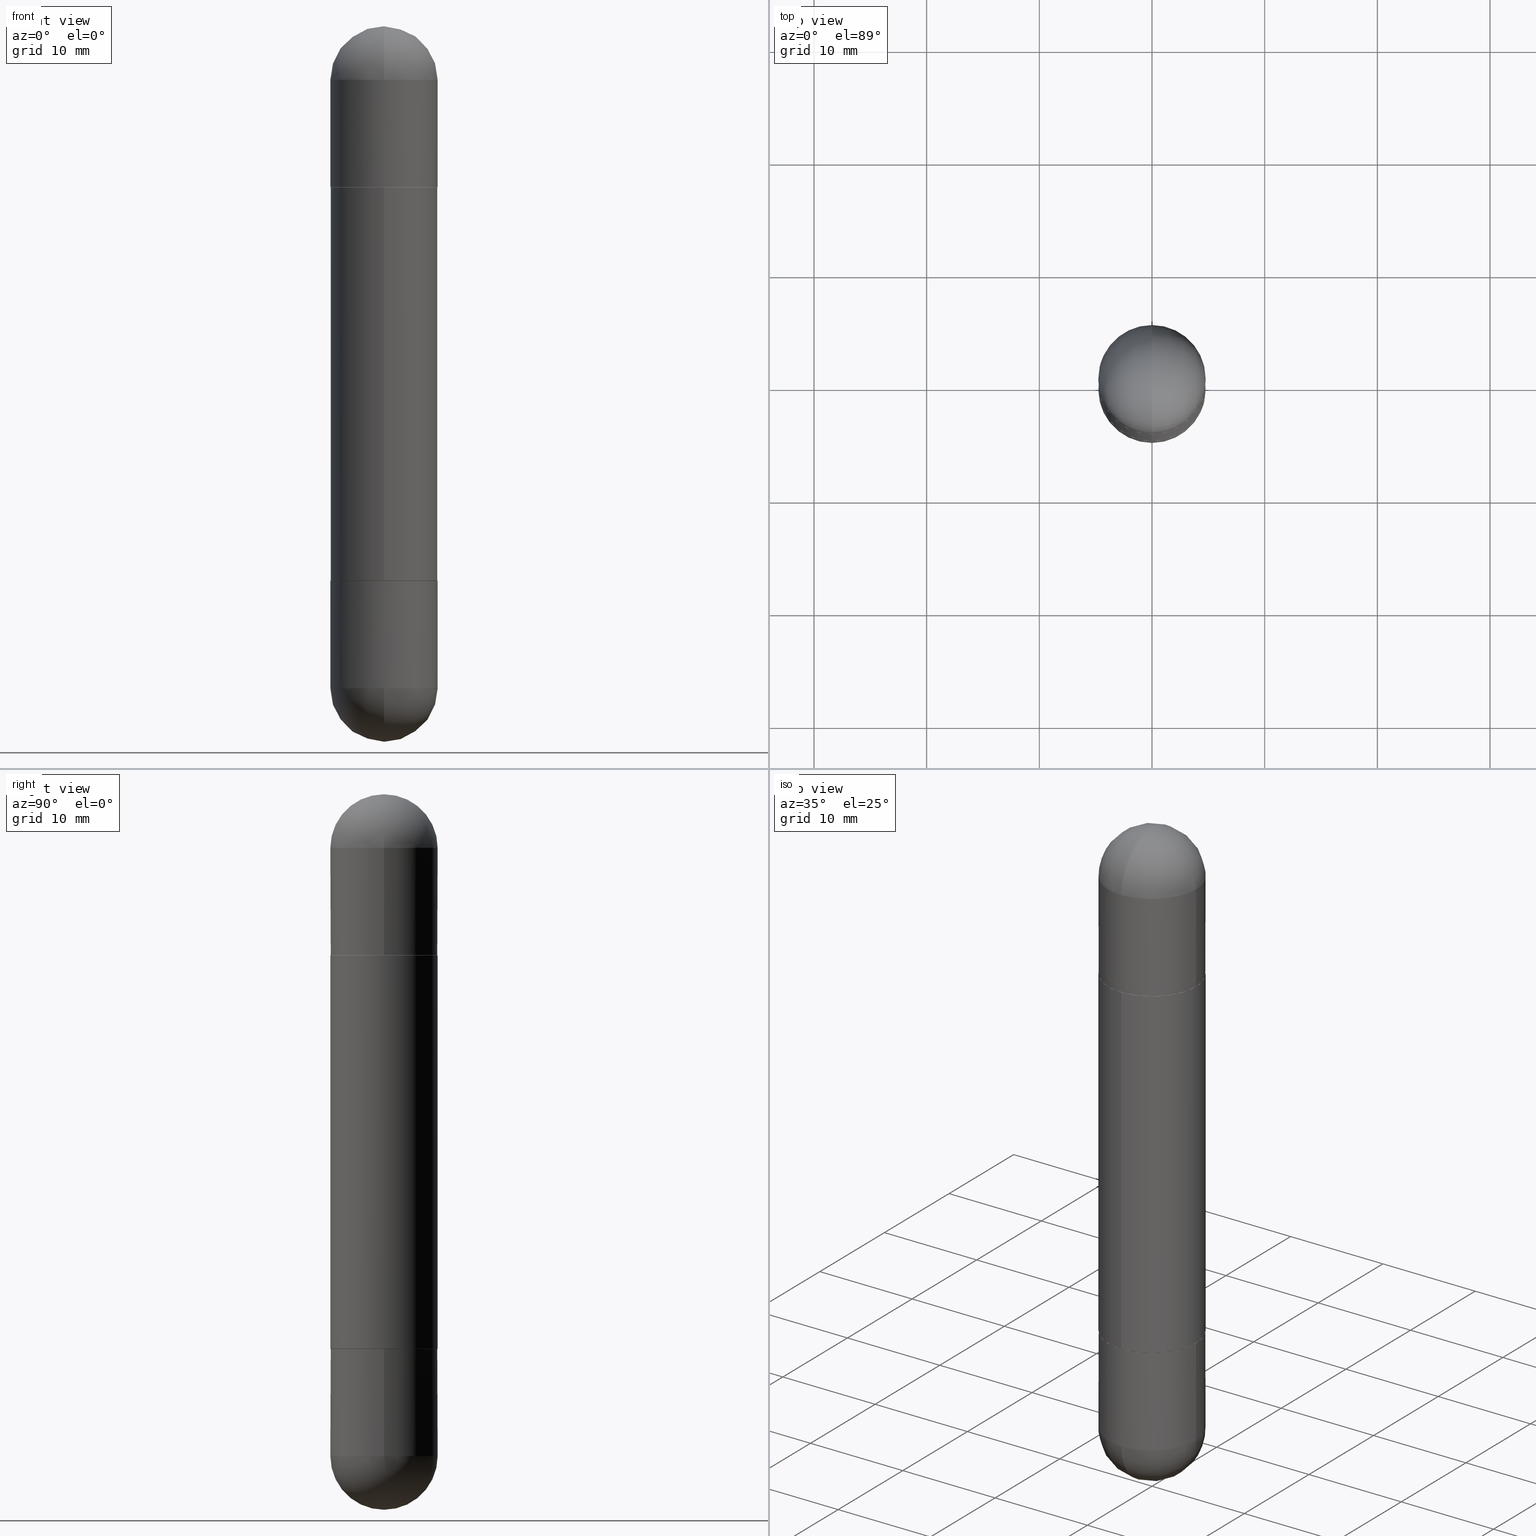
[diagram: canonical four-view strip — front | top / right | iso, engineering-drawing reading convention]
A machine part, canonical four-view strip (front | top / right | iso — engineering-drawing reading convention). The complete STEP part file that produces these views, byte-faithful:
ISO-10303-21;
HEADER;
FILE_DESCRIPTION (( 'STEP AP203' ),
    '1' );
FILE_NAME ('39686.STEP',
    '2024-03-01T12:44:19',
    ( '' ),
    ( '' ),
    'SwSTEP 2.0',
    'SolidWorks 2023',
    '' );
FILE_SCHEMA (( 'CONFIG_CONTROL_DESIGN' ));
ENDSEC;

DATA;
#1 = ORIENTED_EDGE ( 'NONE', *, *, #28, .T. ) ;
#2 = CARTESIAN_POINT ( 'NONE',  ( 5.324026836389243254E-29, -8.548232964214825368E-15, -0.1875000000000006661 ) ) ;
#3 = ORIENTED_EDGE ( 'NONE', *, *, #685, .F. ) ;
#4 = VERTEX_POINT ( 'NONE', #723 ) ;
#5 = CLOSED_SHELL ( 'NONE', ( #402, #405, #659, #617, #726 ) ) ;
#6 = AXIS2_PLACEMENT_3D ( 'NONE', #530, #393, #13 ) ;
#7 = VECTOR ( 'NONE', #232, 39.37007874015748143 ) ;
#8 = EDGE_LOOP ( 'NONE', ( #635, #135 ) ) ;
#9 = CYLINDRICAL_SURFACE ( 'NONE', #293, 0.1875000000000000555 ) ;
#10 = EDGE_LOOP ( 'NONE', ( #75, #186 ) ) ;
#11 = LINE ( 'NONE', #520, #71 ) ;
#12 = EDGE_LOOP ( 'NONE', ( #509, #179, #708, #547 ) ) ;
#13 = DIRECTION ( 'NONE',  ( 1.000000000000000000, -6.982962677686270655E-15, 0.000000000000000000 ) ) ;
#14 = DIRECTION ( 'NONE',  ( -2.444813990974840691E-29, 3.492419071494056237E-15, -1.000000000000000000 ) ) ;
#15 = DIRECTION ( 'NONE',  ( -2.444813990974840691E-29, 3.492419071494056237E-15, -1.000000000000000000 ) ) ;
#16 = SPHERICAL_SURFACE ( 'NONE', #799, 0.1875000000000003331 ) ;
#17 = EDGE_CURVE ( 'NONE', #444, #61, #789, .T. ) ;
#18 = VERTEX_POINT ( 'NONE', #730 ) ;
#19 = ORIENTED_EDGE ( 'NONE', *, *, #516, .T. ) ;
#20 = CIRCLE ( 'NONE', #702, 0.1864999999999999714 ) ;
#21 = AXIS2_PLACEMENT_3D ( 'NONE', #486, #165, #156 ) ;
#22 = CARTESIAN_POINT ( 'NONE',  ( 0.000000000000000000, 0.000000000000000000, -2.500000000000000444 ) ) ;
#23 = LOCAL_TIME ( 7, 44, 19.00000000000000000, #791 ) ;
#24 = ORIENTED_EDGE ( 'NONE', *, *, #608, .T. ) ;
#25 = CALENDAR_DATE ( 2024, 1, 3 ) ;
#26 = DIRECTION ( 'NONE',  ( -6.982962677686265922E-15, -1.000000000000000000, -3.642463991552347014E-15 ) ) ;
#27 = APPROVAL_STATUS ( 'not_yet_approved' ) ;
#28 = EDGE_CURVE ( 'NONE', #714, #111, #670, .T. ) ;
#29 = CARTESIAN_POINT ( 'NONE',  ( 0.000000000000000000, 0.000000000000000000, -2.500000000000000444 ) ) ;
#30 = PERSON_AND_ORGANIZATION ( #660, #515 ) ;
#31 = CLOSED_SHELL ( 'NONE', ( #259, #440, #667, #317, #643, #545, #599, #126 ) ) ;
#32 = FACE_OUTER_BOUND ( 'NONE', #808, .T. ) ;
#33 = ORIENTED_EDGE ( 'NONE', *, *, #395, .T. ) ;
#34 = DIRECTION ( 'NONE',  ( -6.982962677686265922E-15, -1.000000000000000000, -3.492419071494056237E-15 ) ) ;
#35 = DIRECTION ( 'NONE',  ( -1.000000000000000000, 6.982962677686266711E-15, -4.883557194083113462E-29 ) ) ;
#36 = DIRECTION ( 'NONE',  ( -6.982962677686265922E-15, -1.000000000000000000, 2.929595703661408850E-15 ) ) ;
#37 = EDGE_CURVE ( 'NONE', #192, #385, #11, .T. ) ;
#38 = FACE_OUTER_BOUND ( 'NONE', #335, .T. ) ;
#39 = ADVANCED_FACE ( 'NONE', ( #775 ), #80, .F. ) ;
#40 = CARTESIAN_POINT ( 'NONE',  ( 4.739318546386794397E-29, -6.766490834678016045E-15, -0.5620000000000007212 ) ) ;
#41 = CARTESIAN_POINT ( 'NONE',  ( 5.324026836389243254E-29, -8.548232964214825368E-15, -2.312500000000000000 ) ) ;
#42 = CARTESIAN_POINT ( 'NONE',  ( -1.286343374582108525E-15, -0.1875000000000084932, -0.1875000000000013045 ) ) ;
#43 = CARTESIAN_POINT ( 'NONE',  ( 0.000000000000000000, 0.000000000000000000, 0.000000000000000000 ) ) ;
#44 = ORIENTED_EDGE ( 'NONE', *, *, #37, .T. ) ;
#45 = CIRCLE ( 'NONE', #618, 0.1875000000000000555 ) ;
#46 = AXIS2_PLACEMENT_3D ( 'NONE', #622, #699, #502 ) ;
#47 = DIRECTION ( 'NONE',  ( 6.982962677686265922E-15, 1.000000000000000000, 0.000000000000000000 ) ) ;
#48 = ORIENTED_EDGE ( 'NONE', *, *, #757, .F. ) ;
#49 = DIRECTION ( 'NONE',  ( -6.982962677686265922E-15, -1.000000000000000000, -3.642463991552347014E-15 ) ) ;
#50 = PRODUCT ( '39686', '39686', '', ( #282 ) ) ;
#51 = CC_DESIGN_PERSON_AND_ORGANIZATION_ASSIGNMENT ( #671, #783, ( #50 ) ) ;
#52 = LINE ( 'NONE', #266, #115 ) ;
#53 = VERTEX_POINT ( 'NONE', #267 ) ;
#54 = PLANE ( 'NONE',  #86 ) ;
#55 = CARTESIAN_POINT ( 'NONE',  ( -0.1875000000000000555, 1.286343374582162562E-15, -2.500000000000000444 ) ) ;
#56 = CARTESIAN_POINT ( 'NONE',  ( 0.000000000000000000, 0.000000000000000000, -1.250000000000000222 ) ) ;
#57 = ORIENTED_EDGE ( 'NONE', *, *, #349, .F. ) ;
#58 = AXIS2_PLACEMENT_3D ( 'NONE', #355, #677, #796 ) ;
#59 = CIRCLE ( 'NONE', #527, 0.1864999999999999714 ) ;
#60 = DIRECTION ( 'NONE',  ( 1.000000000000000000, -6.982962677686265922E-15, 0.000000000000000000 ) ) ;
#61 = VERTEX_POINT ( 'NONE', #392 ) ;
#62 = SPHERICAL_SURFACE ( 'NONE', #388, 0.1875000000000003331 ) ;
#63 = ORIENTED_EDGE ( 'NONE', *, *, #557, .F. ) ;
#64 = ADVANCED_FACE ( 'NONE', ( #589 ), #524, .F. ) ;
#65 = ORIENTED_EDGE ( 'NONE', *, *, #229, .F. ) ;
#66 = CARTESIAN_POINT ( 'NONE',  ( -1.302322539388441071E-15, -0.1865000000000067437, -0.5620000000000013873 ) ) ;
#67 = ORIENTED_EDGE ( 'NONE', *, *, #591, .F. ) ;
#68 = EDGE_LOOP ( 'NONE', ( #200, #360, #77, #252 ) ) ;
#69 = EDGE_LOOP ( 'NONE', ( #306, #759, #449, #693 ) ) ;
#70 = CARTESIAN_POINT ( 'NONE',  ( 4.735604700518265661E-29, -6.764815741483986322E-15, -1.936999999999999833 ) ) ;
#71 = VECTOR ( 'NONE', #716, 39.37007874015748143 ) ;
#72 = CIRCLE ( 'NONE', #374, 0.1875000000000000555 ) ;
#73 = AXIS2_PLACEMENT_3D ( 'NONE', #204, #81, #268 ) ;
#74 = AXIS2_PLACEMENT_3D ( 'NONE', #173, #413, #731 ) ;
#75 = ORIENTED_EDGE ( 'NONE', *, *, #465, .T. ) ;
#76 = CARTESIAN_POINT ( 'NONE',  ( 5.324026836389243254E-29, -8.548232964214825368E-15, -0.1875000000000006661 ) ) ;
#77 = ORIENTED_EDGE ( 'NONE', *, *, #305, .F. ) ;
#78 = CARTESIAN_POINT ( 'NONE',  ( 1.286343374582209894E-15, 0.1874999999999957534, -1.250000000000000222 ) ) ;
#79 = EDGE_CURVE ( 'NONE', #376, #507, #740, .T. ) ;
#80 = PLANE ( 'NONE',  #535 ) ;
#81 = DIRECTION ( 'NONE',  ( -1.000000000000000000, 6.982962677686265922E-15, 4.883557194083112340E-29 ) ) ;
#82 = CARTESIAN_POINT ( 'NONE',  ( 5.655146614303128380E-29, -8.074050596074775072E-15, -2.312500000000000000 ) ) ;
#83 = EDGE_CURVE ( 'NONE', #211, #385, #455, .T. ) ;
#84 = PERSON_AND_ORGANIZATION_ROLE ( 'creator' ) ;
#85 = AXIS2_PLACEMENT_3D ( 'NONE', #41, #231, #112 ) ;
#86 = AXIS2_PLACEMENT_3D ( 'NONE', #56, #624, #565 ) ;
#87 = CARTESIAN_POINT ( 'NONE',  ( 4.735604700518265661E-29, -6.764815741483986322E-15, -0.5630000000000008331 ) ) ;
#88 = EDGE_CURVE ( 'NONE', #18, #381, #339, .T. ) ;
#89 = ORIENTED_EDGE ( 'NONE', *, *, #683, .F. ) ;
#90 = CALENDAR_DATE ( 2024, 1, 3 ) ;
#91 = DIRECTION ( 'NONE',  ( -2.445468806185136597E-29, 3.491481338843145583E-15, -1.000000000000000000 ) ) ;
#92 = CARTESIAN_POINT ( 'NONE',  ( 1.325162202192633778E-15, 0.1864999999999932268, -1.938000000000000389 ) ) ;
#93 = COORDINATED_UNIVERSAL_TIME_OFFSET ( 5, 0, .BEHIND. ) ;
#94 = CYLINDRICAL_SURFACE ( 'NONE', #283, 0.1875000000000001110 ) ;
#95 = CARTESIAN_POINT ( 'NONE',  ( -0.1875000000000000278, -6.133927340794232602E-15, -0.5620000000000007212 ) ) ;
#96 = COORDINATED_UNIVERSAL_TIME_OFFSET ( 5, 0, .BEHIND. ) ;
#97 = CIRCLE ( 'NONE', #566, 0.1875000000000000555 ) ;
#98 = CARTESIAN_POINT ( 'NONE',  ( 4.738049514509241279E-29, -6.768308160555480413E-15, -0.5620000000000007212 ) ) ;
#99 = AXIS2_PLACEMENT_3D ( 'NONE', #134, #253, #121 ) ;
#100 = ORIENTED_EDGE ( 'NONE', *, *, #558, .F. ) ;
#101 = VECTOR ( 'NONE', #560, 39.37007874015748143 ) ;
#102 = CARTESIAN_POINT ( 'NONE',  ( 4.735604700518265661E-29, -6.764815741483986322E-15, -0.5630000000000008331 ) ) ;
#103 = APPROVAL_PERSON_ORGANIZATION ( #464, #122, #224 ) ;
#104 = CALENDAR_DATE ( 2024, 1, 3 ) ;
#105 = LINE ( 'NONE', #483, #7 ) ;
#106 = DIRECTION ( 'NONE',  ( 1.000000000000000000, -6.982962677686270655E-15, 0.000000000000000000 ) ) ;
#107 = CARTESIAN_POINT ( 'NONE',  ( 4.739318546386794397E-29, -6.766490834678016045E-15, -1.937999999999999945 ) ) ;
#108 = CARTESIAN_POINT ( 'NONE',  ( 0.000000000000000000, 0.000000000000000000, -2.500000000000000444 ) ) ;
#109 = EDGE_CURVE ( 'NONE', #161, #444, #97, .T. ) ;
#110 = CARTESIAN_POINT ( 'NONE',  ( -1.309305502066175797E-15, -0.1875000000000001110, -2.500000000000001332 ) ) ;
#111 = VERTEX_POINT ( 'NONE', #286 ) ;
#112 = DIRECTION ( 'NONE',  ( -7.105427357600999492E-15, -1.000000000000000000, 0.000000000000000000 ) ) ;
#113 = AXIS2_PLACEMENT_3D ( 'NONE', #487, #414, #748 ) ;
#114 = ADVANCED_FACE ( 'NONE', ( #351 ), #673, .T. ) ;
#115 = VECTOR ( 'NONE', #703, 39.37007874015748143 ) ;
#116 = LOCAL_TIME ( 7, 44, 19.00000000000000000, #93 ) ;
#117 = CYLINDRICAL_SURFACE ( 'NONE', #619, 0.1875000000000000555 ) ;
#118 = CARTESIAN_POINT ( 'NONE',  ( 5.655146614303128380E-29, -8.074050596074775072E-15, -2.312500000000000000 ) ) ;
#119 = DIRECTION ( 'NONE',  ( -2.445468806185136877E-29, 3.491481338843145188E-15, 1.000000000000000000 ) ) ;
#120 = ORIENTED_EDGE ( 'NONE', *, *, #37, .F. ) ;
#121 = DIRECTION ( 'NONE',  ( -6.982962677686265922E-15, -1.000000000000000000, 2.929595703661408850E-15 ) ) ;
#122 = APPROVAL ( #348, 'UNSPECIFIED' ) ;
#123 = CARTESIAN_POINT ( 'NONE',  ( 4.735604700518265661E-29, -6.764815741483986322E-15, -0.5630000000000008331 ) ) ;
#124 = ORIENTED_EDGE ( 'NONE', *, *, #475, .T. ) ;
#125 = CARTESIAN_POINT ( 'NONE',  ( 3.056017488718551494E-29, -4.365523839367571874E-15, -1.250000000000000222 ) ) ;
#126 = ADVANCED_FACE ( 'NONE', ( #615 ), #689, .F. ) ;
#127 = ORIENTED_EDGE ( 'NONE', *, *, #675, .T. ) ;
#128 = CLOSED_SHELL ( 'NONE', ( #114, #739, #281, #64, #431, #721 ) ) ;
#129 = AXIS2_PLACEMENT_3D ( 'NONE', #2, #500, #760 ) ;
#130 = AXIS2_PLACEMENT_3D ( 'NONE', #409, #746, #603 ) ;
#131 =( GEOMETRIC_REPRESENTATION_CONTEXT ( 3 ) GLOBAL_UNCERTAINTY_ASSIGNED_CONTEXT ( ( #172 ) ) GLOBAL_UNIT_ASSIGNED_CONTEXT ( ( #720, #215, #408 ) ) REPRESENTATION_CONTEXT ( 'NONE', 'WORKASPACE' ) );
#132 = ORIENTED_EDGE ( 'NONE', *, *, #646, .F. ) ;
#133 = DIRECTION ( 'NONE',  ( 2.445468806185136597E-29, -3.491481338843145583E-15, 1.000000000000000000 ) ) ;
#134 = CARTESIAN_POINT ( 'NONE',  ( 4.738049514509241279E-29, -6.768308160555480413E-15, -1.937999999999999945 ) ) ;
#135 = ORIENTED_EDGE ( 'NONE', *, *, #160, .T. ) ;
#136 = VERTEX_POINT ( 'NONE', #546 ) ;
#137 = ORIENTED_EDGE ( 'NONE', *, *, #88, .F. ) ;
#138 = CARTESIAN_POINT ( 'NONE',  ( 0.000000000000000000, 0.000000000000000000, -2.500000000000000444 ) ) ;
#139 = EDGE_CURVE ( 'NONE', #240, #507, #648, .T. ) ;
#140 = VECTOR ( 'NONE', #585, 39.37007874015748143 ) ;
#141 = DIRECTION ( 'NONE',  ( 2.445468806185136597E-29, -3.491481338843145583E-15, 1.000000000000000000 ) ) ;
#142 = AXIS2_PLACEMENT_3D ( 'NONE', #525, #146, #780 ) ;
#143 = CIRCLE ( 'NONE', #130, 0.1875000000000000278 ) ;
#144 = DIRECTION ( 'NONE',  ( -1.000000000000000000, 6.982962677686265922E-15, -4.876176775795935793E-29 ) ) ;
#145 = COORDINATED_UNIVERSAL_TIME_OFFSET ( 5, 0, .BEHIND. ) ;
#146 = DIRECTION ( 'NONE',  ( -2.444813990974840691E-29, 3.492419071494056237E-15, -1.000000000000000000 ) ) ;
#147 = CARTESIAN_POINT ( 'NONE',  ( 5.655146614303128380E-29, -8.074050596074775072E-15, -0.1875000000000006661 ) ) ;
#148 = EDGE_CURVE ( 'NONE', #385, #211, #715, .T. ) ;
#149 = CC_DESIGN_DATE_AND_TIME_ASSIGNMENT ( #734, #158, ( #312 ) ) ;
#150 = LINE ( 'NONE', #651, #583 ) ;
#151 = DATE_TIME_ROLE ( 'creation_date' ) ;
#152 = AXIS2_PLACEMENT_3D ( 'NONE', #170, #35, #686 ) ;
#153 = ADVANCED_FACE ( 'NONE', ( #420 ), #223, .T. ) ;
#154 = AXIS2_PLACEMENT_3D ( 'NONE', #806, #193, #391 ) ;
#155 = DIRECTION ( 'NONE',  ( 1.000000000000000000, -6.982962677686266711E-15, -4.883557194083113462E-29 ) ) ;
#156 = DIRECTION ( 'NONE',  ( -1.000000000000000000, 6.982962677686265922E-15, 4.876176775795935793E-29 ) ) ;
#157 = CARTESIAN_POINT ( 'NONE',  ( 0.1875000000000000555, -8.729576217442571356E-15, -2.312500000000000000 ) ) ;
#158 = DATE_TIME_ROLE ( 'classification_date' ) ;
#159 = CYLINDRICAL_SURFACE ( 'NONE', #812, 0.1875000000000000555 ) ;
#160 = EDGE_CURVE ( 'NONE', #564, #642, #767, .T. ) ;
#161 = VERTEX_POINT ( 'NONE', #226 ) ;
#162 = CARTESIAN_POINT ( 'NONE',  ( 5.655146614303128380E-29, -8.074050596074775072E-15, -0.1875000000000006661 ) ) ;
#163 = DATE_AND_TIME ( #104, #680 ) ;
#164 = PRODUCT_RELATED_PRODUCT_CATEGORY ( 'detail', '', ( #50 ) ) ;
#165 = DIRECTION ( 'NONE',  ( 2.438088387897960049E-29, -3.491481338843145188E-15, 1.000000000000000000 ) ) ;
#166 = VECTOR ( 'NONE', #814, 39.37007874015748143 ) ;
#167 = CARTESIAN_POINT ( 'NONE',  ( 5.655146614303128380E-29, -8.074050596074775072E-15, -0.1875000000000006661 ) ) ;
#168 = ORIENTED_EDGE ( 'NONE', *, *, #711, .T. ) ;
#169 = DIRECTION ( 'NONE',  ( 6.982962677686266711E-15, 1.000000000000000000, -2.913971193241875639E-15 ) ) ;
#170 = CARTESIAN_POINT ( 'NONE',  ( 5.324026836389243254E-29, -8.548232964214825368E-15, -2.312500000000000000 ) ) ;
#171 = ADVANCED_FACE ( 'NONE', ( #38 ), #361, .T. ) ;
#172 = UNCERTAINTY_MEASURE_WITH_UNIT (LENGTH_MEASURE( 1.000000000000000082E-05 ), #720, 'distance_accuracy_value', 'NONE');
#173 = CARTESIAN_POINT ( 'NONE',  ( 3.056017488718551494E-29, -4.365523839367571874E-15, -1.250000000000000222 ) ) ;
#174 = EDGE_CURVE ( 'NONE', #528, #278, #682, .T. ) ;
#175 = ORIENTED_EDGE ( 'NONE', *, *, #343, .T. ) ;
#176 = CARTESIAN_POINT ( 'NONE',  ( 4.738049514509241279E-29, -6.768308160555480413E-15, -1.937999999999999945 ) ) ;
#177 = ORIENTED_EDGE ( 'NONE', *, *, #586, .F. ) ;
#178 = CARTESIAN_POINT ( 'NONE',  ( 1.286343374582162760E-15, 0.1875000000000001110, -2.500000000000000000 ) ) ;
#179 = ORIENTED_EDGE ( 'NONE', *, *, #320, .T. ) ;
#180 = AXIS2_PLACEMENT_3D ( 'NONE', #108, #425, #485 ) ;
#181 = LINE ( 'NONE', #315, #166 ) ;
#182 = ORIENTED_EDGE ( 'NONE', *, *, #559, .F. ) ;
#183 = AXIS2_PLACEMENT_3D ( 'NONE', #107, #788, #801 ) ;
#184 = CIRCLE ( 'NONE', #652, 0.1875000000000003331 ) ;
#185 = DIRECTION ( 'NONE',  ( -2.445468806185136877E-29, 3.491481338843145188E-15, -1.000000000000000000 ) ) ;
#186 = ORIENTED_EDGE ( 'NONE', *, *, #559, .T. ) ;
#187 = DIRECTION ( 'NONE',  ( -6.982962677686265922E-15, -1.000000000000000000, 2.929595703661408850E-15 ) ) ;
#188 = PRODUCT_DEFINITION ( 'UNKNOWN', '', #297, #495 ) ;
#189 = DIRECTION ( 'NONE',  ( 6.982962677686266711E-15, 1.000000000000000000, 3.460340791974727494E-15 ) ) ;
#190 = EDGE_LOOP ( 'NONE', ( #625, #296, #407, #120 ) ) ;
#191 = CYLINDRICAL_SURFACE ( 'NONE', #664, 0.1875000000000000555 ) ;
#192 = VERTEX_POINT ( 'NONE', #562 ) ;
#193 = DIRECTION ( 'NONE',  ( 1.000000000000000000, -6.860497997771530774E-15, -4.840798879624142912E-29 ) ) ;
#194 = DIRECTION ( 'NONE',  ( 2.438088387897960049E-29, -3.491481338843145188E-15, 1.000000000000000000 ) ) ;
#195 = ORIENTED_EDGE ( 'NONE', *, *, #786, .T. ) ;
#196 = ORIENTED_EDGE ( 'NONE', *, *, #774, .F. ) ;
#197 = CIRCLE ( 'NONE', #728, 0.1875000000000000555 ) ;
#198 = AXIS2_PLACEMENT_3D ( 'NONE', #98, #681, #548 ) ;
#199 = CARTESIAN_POINT ( 'NONE',  ( 4.738049514509241279E-29, -6.768308160555480413E-15, -0.5620000000000007212 ) ) ;
#200 = ORIENTED_EDGE ( 'NONE', *, *, #787, .F. ) ;
#201 = FACE_OUTER_BOUND ( 'NONE', #458, .T. ) ;
#202 = EDGE_CURVE ( 'NONE', #345, #4, #72, .T. ) ;
#203 = DIRECTION ( 'NONE',  ( 2.438088387897960049E-29, -3.491481338843145188E-15, -1.000000000000000000 ) ) ;
#204 = CARTESIAN_POINT ( 'NONE',  ( 5.324026836389243254E-29, -8.548232964214825368E-15, -0.1875000000000006661 ) ) ;
#205 = DIRECTION ( 'NONE',  ( -6.982962677686265922E-15, -1.000000000000000000, -3.642463991552347014E-15 ) ) ;
#206 = VECTOR ( 'NONE', #656, 39.37007874015748143 ) ;
#207 = AXIS2_PLACEMENT_3D ( 'NONE', #744, #287, #424 ) ;
#208 = MANIFOLD_SOLID_BREP ( 'Mirror4[3]', #5 ) ;
#209 = EDGE_CURVE ( 'NONE', #4, #645, #741, .T. ) ;
#210 = LINE ( 'NONE', #460, #206 ) ;
#211 = VERTEX_POINT ( 'NONE', #357 ) ;
#212 = CARTESIAN_POINT ( 'NONE',  ( 0.000000000000000000, 0.000000000000000000, 0.000000000000000000 ) ) ;
#213 = EDGE_CURVE ( 'NONE', #610, #61, #632, .T. ) ;
#214 = CARTESIAN_POINT ( 'NONE',  ( 5.324026836389243254E-29, -8.548232964214825368E-15, -0.1875000000000006661 ) ) ;
#215 =( NAMED_UNIT ( * ) PLANE_ANGLE_UNIT ( ) SI_UNIT ( $, .RADIAN. ) );
#216 = MANIFOLD_SOLID_BREP ( 'Body-Move/Copy2[1]', #254 ) ;
#217 = DIRECTION ( 'NONE',  ( 1.000000000000000000, -6.982962677686270655E-15, 0.000000000000000000 ) ) ;
#218 = CONICAL_SURFACE ( 'NONE', #99, 0.1864999999999999714, 0.7853981633975336552 ) ;
#219 = DIRECTION ( 'NONE',  ( -6.982962677686265922E-15, -1.000000000000000000, 2.913971193241877216E-15 ) ) ;
#220 = DIRECTION ( 'NONE',  ( -6.982962677686265922E-15, -1.000000000000000000, 2.929595703661408850E-15 ) ) ;
#221 = FACE_OUTER_BOUND ( 'NONE', #319, .T. ) ;
#222 = CC_DESIGN_PERSON_AND_ORGANIZATION_ASSIGNMENT ( #590, #725, ( #312 ) ) ;
#223 = SPHERICAL_SURFACE ( 'NONE', #152, 0.1875000000000003331 ) ;
#224 = APPROVAL_ROLE ( '' ) ;
#225 = DIRECTION ( 'NONE',  ( -2.444813990974840691E-29, 3.492419071494056237E-15, -1.000000000000000000 ) ) ;
#226 = CARTESIAN_POINT ( 'NONE',  ( 1.309305502066231017E-15, 0.1874999999999918954, -0.1875000000000000278 ) ) ;
#227 = DIRECTION ( 'NONE',  ( 1.000000000000000000, -6.982962677686266711E-15, 0.000000000000000000 ) ) ;
#228 = AXIS2_PLACEMENT_3D ( 'NONE', #70, #636, #756 ) ;
#229 = EDGE_CURVE ( 'NONE', #528, #714, #481, .T. ) ;
#230 = CIRCLE ( 'NONE', #498, 0.1875000000000002220 ) ;
#231 = DIRECTION ( 'NONE',  ( -1.000000000000000000, 7.105427357601001070E-15, -4.926315508542082329E-29 ) ) ;
#232 = DIRECTION ( 'NONE',  ( -2.445468806185136877E-29, 3.491481338843145188E-15, -1.000000000000000000 ) ) ;
#233 = ORIENTED_EDGE ( 'NONE', *, *, #557, .T. ) ;
#234 = DIRECTION ( 'NONE',  ( 2.444813990974840691E-29, -3.492419071494056237E-15, 1.000000000000000000 ) ) ;
#235 = DIRECTION ( 'NONE',  ( -2.445468806185136597E-29, 3.491481338843145583E-15, -1.000000000000000000 ) ) ;
#236 = VERTEX_POINT ( 'NONE', #157 ) ;
#237 = DIRECTION ( 'NONE',  ( -1.000000000000000000, 6.982962677686265922E-15, 4.876176775795935793E-29 ) ) ;
#238 = CARTESIAN_POINT ( 'NONE',  ( 5.324026836389243254E-29, -8.548232964214825368E-15, -2.312500000000000000 ) ) ;
#239 = EDGE_LOOP ( 'NONE', ( #712, #1, #63, #551 ) ) ;
#240 = VERTEX_POINT ( 'NONE', #95 ) ;
#241 = CIRCLE ( 'NONE', #272, 0.1875000000000000555 ) ;
#242 = DIRECTION ( 'NONE',  ( 6.982962677686266711E-15, 1.000000000000000000, 3.460340791974727494E-15 ) ) ;
#243 = CIRCLE ( 'NONE', #679, 0.1875000000000000555 ) ;
#244 = LOCAL_TIME ( 7, 44, 19.00000000000000000, #461 ) ;
#245 = DIRECTION ( 'NONE',  ( 1.000000000000000000, -6.982962677686270655E-15, 0.000000000000000000 ) ) ;
#246 = ORIENTED_EDGE ( 'NONE', *, *, #160, .F. ) ;
#247 = CARTESIAN_POINT ( 'NONE',  ( 4.739318546386794397E-29, -6.766490834678016045E-15, -0.5620000000000007212 ) ) ;
#248 = ORIENTED_EDGE ( 'NONE', *, *, #17, .F. ) ;
#249 = DIRECTION ( 'NONE',  ( -2.444813990974840971E-29, 3.492419071494056237E-15, -1.000000000000000000 ) ) ;
#250 = ORIENTED_EDGE ( 'NONE', *, *, #807, .T. ) ;
#251 = DIRECTION ( 'NONE',  ( -2.445468806185136597E-29, 3.491481338843145583E-15, 1.000000000000000000 ) ) ;
#252 = ORIENTED_EDGE ( 'NONE', *, *, #358, .F. ) ;
#253 = DIRECTION ( 'NONE',  ( -2.444813990974840691E-29, 3.492419071494056237E-15, 1.000000000000000000 ) ) ;
#254 = CLOSED_SHELL ( 'NONE', ( #171, #531, #153, #39, #493 ) ) ;
#255 = ADVANCED_FACE ( 'NONE', ( #430 ), #308, .F. ) ;
#256 = AXIS2_PLACEMENT_3D ( 'NONE', #504, #194, #237 ) ;
#257 = VECTOR ( 'NONE', #588, 39.37007874015748143 ) ;
#258 = EDGE_LOOP ( 'NONE', ( #573, #24 ) ) ;
#259 = ADVANCED_FACE ( 'NONE', ( #375 ), #218, .T. ) ;
#260 = ADVANCED_FACE ( 'NONE', ( #694 ), #62, .T. ) ;
#261 = DIRECTION ( 'NONE',  ( 1.000000000000000000, -6.982962677686266711E-15, -4.883557194083113462E-29 ) ) ;
#262 = EDGE_LOOP ( 'NONE', ( #137, #575, #328, #265 ) ) ;
#263 = CYLINDRICAL_SURFACE ( 'NONE', #650, 0.1875000000000000555 ) ;
#264 = ORIENTED_EDGE ( 'NONE', *, *, #786, .F. ) ;
#265 = ORIENTED_EDGE ( 'NONE', *, *, #491, .F. ) ;
#266 = CARTESIAN_POINT ( 'NONE',  ( -0.1875000000000000555, 1.286343374582162562E-15, -2.500000000000000444 ) ) ;
#267 = CARTESIAN_POINT ( 'NONE',  ( 1.286343374582210880E-15, 0.1874999999999935052, -0.5630000000000001670 ) ) ;
#268 = DIRECTION ( 'NONE',  ( -6.982962677686265922E-15, -1.000000000000000000, 0.000000000000000000 ) ) ;
#269 = CC_DESIGN_PERSON_AND_ORGANIZATION_ASSIGNMENT ( #657, #602, ( #297 ) ) ;
#270 = ORIENTED_EDGE ( 'NONE', *, *, #276, .F. ) ;
#271 = DIRECTION ( 'NONE',  ( 0.000000000000000000, 0.000000000000000000, 1.000000000000000000 ) ) ;
#272 = AXIS2_PLACEMENT_3D ( 'NONE', #118, #450, #771 ) ;
#273 = CIRCLE ( 'NONE', #729, 0.1875000000000002220 ) ;
#274 = APPROVAL_PERSON_ORGANIZATION ( #666, #572, #279 ) ;
#275 = FACE_OUTER_BOUND ( 'NONE', #631, .T. ) ;
#276 = EDGE_CURVE ( 'NONE', #564, #53, #181, .T. ) ;
#277 = DIRECTION ( 'NONE',  ( -6.982962677686266711E-15, -1.000000000000000000, -2.913971193241879189E-15 ) ) ;
#278 = VERTEX_POINT ( 'NONE', #318 ) ;
#279 = APPROVAL_ROLE ( '' ) ;
#280 = FACE_OUTER_BOUND ( 'NONE', #630, .T. ) ;
#281 = ADVANCED_FACE ( 'NONE', ( #382 ), #54, .F. ) ;
#282 = MECHANICAL_CONTEXT ( 'NONE', #658, 'mechanical' ) ;
#283 = AXIS2_PLACEMENT_3D ( 'NONE', #29, #225, #612 ) ;
#284 = EDGE_CURVE ( 'NONE', #507, #240, #594, .T. ) ;
#285 = DIRECTION ( 'NONE',  ( -2.445468806185136597E-29, 3.491481338843145583E-15, -1.000000000000000000 ) ) ;
#286 = CARTESIAN_POINT ( 'NONE',  ( 1.286343374582193722E-15, 0.1874999999999934497, -1.937000000000000499 ) ) ;
#287 = DIRECTION ( 'NONE',  ( 2.445468806185136597E-29, -3.491481338843145583E-15, 1.000000000000000000 ) ) ;
#288 = DIRECTION ( 'NONE',  ( -2.445468806185136597E-29, 3.491481338843145583E-15, 1.000000000000000000 ) ) ;
#289 = DIRECTION ( 'NONE',  ( 2.445468806185136597E-29, -3.491481338843145583E-15, 1.000000000000000000 ) ) ;
#290 = DIRECTION ( 'NONE',  ( -2.444813990974840691E-29, 3.492419071494056237E-15, 1.000000000000000000 ) ) ;
#291 = EDGE_CURVE ( 'NONE', #714, #528, #20, .T. ) ;
#292 = FACE_OUTER_BOUND ( 'NONE', #303, .T. ) ;
#293 = AXIS2_PLACEMENT_3D ( 'NONE', #22, #91, #582 ) ;
#294 = VERTEX_POINT ( 'NONE', #576 ) ;
#295 = DIRECTION ( 'NONE',  ( -4.937700262164969294E-15, -0.7071067811866054154, 0.7071067811864896191 ) ) ;
#296 = ORIENTED_EDGE ( 'NONE', *, *, #501, .T. ) ;
#297 = PRODUCT_DEFINITION_FORMATION_WITH_SPECIFIED_SOURCE ( 'ANY', '', #50, .NOT_KNOWN. ) ;
#298 = CYLINDRICAL_SURFACE ( 'NONE', #779, 0.1875000000000001110 ) ;
#299 = DIRECTION ( 'NONE',  ( 2.444813990974840691E-29, -3.492419071494056237E-15, 1.000000000000000000 ) ) ;
#300 = LINE ( 'NONE', #436, #607 ) ;
#301 = ORIENTED_EDGE ( 'NONE', *, *, #139, .T. ) ;
#302 = PLANE ( 'NONE',  #690 ) ;
#303 = EDGE_LOOP ( 'NONE', ( #196, #33, #697, #503 ) ) ;
#304 = DIRECTION ( 'NONE',  ( 2.445468806185136597E-29, -3.491481338843145583E-15, 1.000000000000000000 ) ) ;
#305 = EDGE_CURVE ( 'NONE', #705, #381, #241, .T. ) ;
#306 = ORIENTED_EDGE ( 'NONE', *, *, #28, .F. ) ;
#307 = CIRCLE ( 'NONE', #73, 0.1875000000000003331 ) ;
#308 = PLANE ( 'NONE',  #256 ) ;
#309 = ORIENTED_EDGE ( 'NONE', *, *, #698, .T. ) ;
#310 = CIRCLE ( 'NONE', #569, 0.1875000000000000278 ) ;
#311 = ORIENTED_EDGE ( 'NONE', *, *, #284, .T. ) ;
#312 = SECURITY_CLASSIFICATION ( '', '', #336 ) ;
#313 = DIRECTION ( 'NONE',  ( -2.444813990974840971E-29, 3.492419071494056237E-15, -1.000000000000000000 ) ) ;
#314 = ORIENTED_EDGE ( 'NONE', *, *, #291, .F. ) ;
#315 = CARTESIAN_POINT ( 'NONE',  ( 1.279482876584437493E-15, 0.1864999999999932268, -0.5620000000000000551 ) ) ;
#316 = ORIENTED_EDGE ( 'NONE', *, *, #591, .T. ) ;
#317 = ADVANCED_FACE ( 'NONE', ( #367 ), #302, .F. ) ;
#318 = CARTESIAN_POINT ( 'NONE',  ( -1.309305502066129254E-15, -0.1875000000000069944, -1.936999999999999389 ) ) ;
#319 = EDGE_LOOP ( 'NONE', ( #246, #428, #19, #541 ) ) ;
#320 = EDGE_CURVE ( 'NONE', #610, #161, #325, .T. ) ;
#321 = VERTEX_POINT ( 'NONE', #579 ) ;
#322 = DIRECTION ( 'NONE',  ( -1.000000000000000000, 0.000000000000000000, 0.000000000000000000 ) ) ;
#323 = ORIENTED_EDGE ( 'NONE', *, *, #451, .F. ) ;
#324 = ORIENTED_EDGE ( 'NONE', *, *, #305, .T. ) ;
#325 = CIRCLE ( 'NONE', #129, 0.1875000000000003331 ) ;
#326 = VECTOR ( 'NONE', #185, 39.37007874015748143 ) ;
#327 = DIMENSIONAL_EXPONENTS ( 1.000000000000000000, 0.000000000000000000, 0.000000000000000000, 0.000000000000000000, 0.000000000000000000, 0.000000000000000000, 0.000000000000000000 ) ;
#328 = ORIENTED_EDGE ( 'NONE', *, *, #475, .F. ) ;
#329 = DIRECTION ( 'NONE',  ( 1.000000000000000000, -6.982962677686266711E-15, 0.000000000000000000 ) ) ;
#330 = ORIENTED_EDGE ( 'NONE', *, *, #79, .T. ) ;
#331 = LINE ( 'NONE', #362, #257 ) ;
#332 = EDGE_CURVE ( 'NONE', #111, #278, #400, .T. ) ;
#333 = CARTESIAN_POINT ( 'NONE',  ( 4.738049514509241279E-29, -6.768308160555480413E-15, -0.5620000000000007212 ) ) ;
#334 = FACE_OUTER_BOUND ( 'NONE', #578, .T. ) ;
#335 = EDGE_LOOP ( 'NONE', ( #384, #250, #561, #323, #124 ) ) ;
#336 = SECURITY_CLASSIFICATION_LEVEL ( 'unclassified' ) ;
#337 = FACE_OUTER_BOUND ( 'NONE', #815, .T. ) ;
#338 = ORIENTED_EDGE ( 'NONE', *, *, #148, .F. ) ;
#339 = CIRCLE ( 'NONE', #85, 0.1875000000000003331 ) ;
#340 = DATE_AND_TIME ( #533, #116 ) ;
#341 = AXIS2_PLACEMENT_3D ( 'NONE', #125, #710, #322 ) ;
#342 = CONICAL_SURFACE ( 'NONE', #553, 0.1864999999999999714, 0.7853981633975336552 ) ;
#343 = EDGE_CURVE ( 'NONE', #642, #817, #434, .T. ) ;
#344 = DIRECTION ( 'NONE',  ( 2.444813990974840691E-29, -3.492419071494056237E-15, 1.000000000000000000 ) ) ;
#345 = VERTEX_POINT ( 'NONE', #751 ) ;
#346 = PERSON_AND_ORGANIZATION ( #660, #515 ) ;
#347 = ADVANCED_FACE ( 'NONE', ( #696 ), #191, .T. ) ;
#348 = APPROVAL_STATUS ( 'not_yet_approved' ) ;
#349 = EDGE_CURVE ( 'NONE', #747, #321, #811, .T. ) ;
#350 = CARTESIAN_POINT ( 'NONE',  ( -0.1875000000000000278, -6.133927340794232602E-15, -0.5620000000000007212 ) ) ;
#351 = FACE_OUTER_BOUND ( 'NONE', #379, .T. ) ;
#352 = AXIS2_PLACEMENT_3D ( 'NONE', #627, #432, #189 ) ;
#353 = CARTESIAN_POINT ( 'NONE',  ( 5.324026836389243254E-29, -8.548232964214825368E-15, -2.312500000000000000 ) ) ;
#354 = EDGE_LOOP ( 'NONE', ( #65, #314 ) ) ;
#355 = CARTESIAN_POINT ( 'NONE',  ( 4.739318546386794397E-29, -6.766490834678016045E-15, -0.5620000000000007212 ) ) ;
#356 = CARTESIAN_POINT ( 'NONE',  ( 0.1875000000000000278, -8.075796336744191053E-15, -1.937999999999999945 ) ) ;
#357 = CARTESIAN_POINT ( 'NONE',  ( 1.286343374582210880E-15, 0.1874999999999935052, -0.5630000000000001670 ) ) ;
#358 = EDGE_CURVE ( 'NONE', #294, #705, #45, .T. ) ;
#359 = DIRECTION ( 'NONE',  ( -6.982962677686265922E-15, -1.000000000000000000, -3.661994629576761260E-15 ) ) ;
#360 = ORIENTED_EDGE ( 'NONE', *, *, #88, .T. ) ;
#361 = CYLINDRICAL_SURFACE ( 'NONE', #752, 0.1875000000000000555 ) ;
#362 = CARTESIAN_POINT ( 'NONE',  ( -1.309305502066175797E-15, -0.1875000000000001110, -2.500000000000001332 ) ) ;
#363 = AXIS2_PLACEMENT_3D ( 'NONE', #162, #793, #106 ) ;
#364 = AXIS2_PLACEMENT_3D ( 'NONE', #82, #668, #776 ) ;
#365 = DIRECTION ( 'NONE',  ( 1.000000000000000000, -6.982962677686270655E-15, 0.000000000000000000 ) ) ;
#366 = CARTESIAN_POINT ( 'NONE',  ( 0.000000000000000000, 0.000000000000000000, -2.500000000000000444 ) ) ;
#367 = FACE_OUTER_BOUND ( 'NONE', #8, .T. ) ;
#368 = APPROVAL ( #27, 'UNSPECIFIED' ) ;
#369 = LINE ( 'NONE', #55, #326 ) ;
#370 = ORIENTED_EDGE ( 'NONE', *, *, #489, .T. ) ;
#371 = DIRECTION ( 'NONE',  ( 1.000000000000000000, -6.982962677686266711E-15, -4.883557194083113462E-29 ) ) ;
#372 = CARTESIAN_POINT ( 'NONE',  ( 0.000000000000000000, 0.000000000000000000, -2.500000000000000444 ) ) ;
#373 = ORIENTED_EDGE ( 'NONE', *, *, #79, .F. ) ;
#374 = AXIS2_PLACEMENT_3D ( 'NONE', #736, #411, #365 ) ;
#375 = FACE_OUTER_BOUND ( 'NONE', #239, .T. ) ;
#376 = VERTEX_POINT ( 'NONE', #764 ) ;
#377 = AXIS2_PLACEMENT_3D ( 'NONE', #353, #797, #169 ) ;
#378 = VECTOR ( 'NONE', #119, 39.37007874015748143 ) ;
#379 = EDGE_LOOP ( 'NONE', ( #383, #597, #100, #3 ) ) ;
#380 = DIRECTION ( 'NONE',  ( 1.000000000000000000, -6.982962677686266711E-15, 0.000000000000000000 ) ) ;
#381 = VERTEX_POINT ( 'NONE', #706 ) ;
#382 = FACE_OUTER_BOUND ( 'NONE', #484, .T. ) ;
#383 = ORIENTED_EDGE ( 'NONE', *, *, #83, .F. ) ;
#384 = ORIENTED_EDGE ( 'NONE', *, *, #358, .T. ) ;
#385 = VERTEX_POINT ( 'NONE', #805 ) ;
#386 = VERTEX_POINT ( 'NONE', #598 ) ;
#387 = DIRECTION ( 'NONE',  ( 1.000000000000000000, -6.982962677686265922E-15, 4.876176775795935793E-29 ) ) ;
#388 = AXIS2_PLACEMENT_3D ( 'NONE', #443, #371, #242 ) ;
#389 = AXIS2_PLACEMENT_3D ( 'NONE', #543, #672, #36 ) ;
#390 = LOCAL_TIME ( 7, 44, 19.00000000000000000, #145 ) ;
#391 = DIRECTION ( 'NONE',  ( 6.860497997771530774E-15, 1.000000000000000000, 0.000000000000000000 ) ) ;
#392 = CARTESIAN_POINT ( 'NONE',  ( -1.286343374582108525E-15, -0.1875000000000084932, -0.1875000000000013045 ) ) ;
#393 = DIRECTION ( 'NONE',  ( 2.445468806185136597E-29, -3.491481338843145583E-15, 1.000000000000000000 ) ) ;
#394 = APPROVAL_DATE_TIME ( #600, #122 ) ;
#395 = EDGE_CURVE ( 'NONE', #639, #345, #307, .T. ) ;
#396 = DIRECTION ( 'NONE',  ( 6.982962677686266711E-15, 1.000000000000000000, 3.460340791974727494E-15 ) ) ;
#397 = DIRECTION ( 'NONE',  ( 2.445468806185136597E-29, -3.491481338843145583E-15, 1.000000000000000000 ) ) ;
#398 = APPLICATION_PROTOCOL_DEFINITION ( 'international standard', 'config_control_design', 1994, #658 ) ;
#399 = CYLINDRICAL_SURFACE ( 'NONE', #567, 0.1875000000000001110 ) ;
#400 = CIRCLE ( 'NONE', #228, 0.1875000000000002220 ) ;
#401 = AXIS2_PLACEMENT_3D ( 'NONE', #735, #684, #614 ) ;
#402 = ADVANCED_FACE ( 'NONE', ( #334 ), #9, .T. ) ;
#403 = CC_DESIGN_APPROVAL ( #368, ( #312 ) ) ;
#404 = FACE_OUTER_BOUND ( 'NONE', #510, .T. ) ;
#405 = ADVANCED_FACE ( 'NONE', ( #404 ), #16, .T. ) ;
#406 = ORIENTED_EDGE ( 'NONE', *, *, #768, .F. ) ;
#407 = ORIENTED_EDGE ( 'NONE', *, *, #83, .T. ) ;
#408 =( NAMED_UNIT ( * ) SI_UNIT ( $, .STERADIAN. ) SOLID_ANGLE_UNIT ( ) );
#409 = CARTESIAN_POINT ( 'NONE',  ( 4.739318546386794397E-29, -6.766490834678016045E-15, -0.5620000000000007212 ) ) ;
#410 = EDGE_LOOP ( 'NONE', ( #555, #433, #518, #316, #719 ) ) ;
#411 = DIRECTION ( 'NONE',  ( 2.445468806185136597E-29, -3.491481338843145583E-15, 1.000000000000000000 ) ) ;
#412 = PERSON_AND_ORGANIZATION ( #660, #515 ) ;
#413 = DIRECTION ( 'NONE',  ( -0.000000000000000000, -0.000000000000000000, -1.000000000000000000 ) ) ;
#414 = DIRECTION ( 'NONE',  ( 1.000000000000000000, -6.860497997771530774E-15, -4.840798879624142912E-29 ) ) ;
#415 = SHAPE_DEFINITION_REPRESENTATION ( #421, #462 ) ;
#416 = CIRCLE ( 'NONE', #6, 0.1875000000000000555 ) ;
#417 = CC_DESIGN_DATE_AND_TIME_ASSIGNMENT ( #340, #151, ( #188 ) ) ;
#418 = CIRCLE ( 'NONE', #429, 0.1875000000000000555 ) ;
#419 = CARTESIAN_POINT ( 'NONE',  ( 1.282913125583324384E-15, 0.1864999999999932268, -0.5620000000000000551 ) ) ;
#420 = FACE_OUTER_BOUND ( 'NONE', #262, .T. ) ;
#421 = PRODUCT_DEFINITION_SHAPE ( 'NONE', 'NONE',  #188 ) ;
#422 = FACE_OUTER_BOUND ( 'NONE', #641, .T. ) ;
#423 = DIRECTION ( 'NONE',  ( 2.445468806185136597E-29, -3.491481338843145583E-15, 1.000000000000000000 ) ) ;
#424 = DIRECTION ( 'NONE',  ( 1.000000000000000000, -6.982962677686270655E-15, 0.000000000000000000 ) ) ;
#425 = DIRECTION ( 'NONE',  ( -2.444813990974840691E-29, 3.492419071494056237E-15, -1.000000000000000000 ) ) ;
#426 = AXIS2_PLACEMENT_3D ( 'NONE', #147, #397, #217 ) ;
#427 = CARTESIAN_POINT ( 'NONE',  ( -1.309305502066128860E-15, -0.1875000000000069389, -0.5630000000000014992 ) ) ;
#428 = ORIENTED_EDGE ( 'NONE', *, *, #276, .T. ) ;
#429 = AXIS2_PLACEMENT_3D ( 'NONE', #563, #141, #245 ) ;
#430 = FACE_OUTER_BOUND ( 'NONE', #669, .T. ) ;
#431 = ADVANCED_FACE ( 'NONE', ( #275 ), #442, .T. ) ;
#432 = DIRECTION ( 'NONE',  ( 1.000000000000000000, -6.982962677686266711E-15, -4.883557194083113462E-29 ) ) ;
#433 = ORIENTED_EDGE ( 'NONE', *, *, #202, .F. ) ;
#434 = LINE ( 'NONE', #66, #678 ) ;
#435 = ORIENTED_EDGE ( 'NONE', *, *, #595, .F. ) ;
#436 = CARTESIAN_POINT ( 'NONE',  ( 1.286343374582162760E-15, 0.1875000000000001110, -2.500000000000000000 ) ) ;
#437 = ORIENTED_EDGE ( 'NONE', *, *, #683, .T. ) ;
#438 = DIRECTION ( 'NONE',  ( -2.445468806185136597E-29, 3.491481338843145583E-15, -1.000000000000000000 ) ) ;
#439 = ORIENTED_EDGE ( 'NONE', *, *, #209, .F. ) ;
#440 = ADVANCED_FACE ( 'NONE', ( #201 ), #399, .T. ) ;
#441 = CARTESIAN_POINT ( 'NONE',  ( 4.738049514509241279E-29, -6.768308160555480413E-15, -0.5620000000000007212 ) ) ;
#442 = CONICAL_SURFACE ( 'NONE', #142, 0.1864999999999999714, 0.7853981633975336552 ) ;
#443 = CARTESIAN_POINT ( 'NONE',  ( 5.324026836389243254E-29, -8.548232964214825368E-15, -0.1875000000000006661 ) ) ;
#444 = VERTEX_POINT ( 'NONE', #592 ) ;
#445 = CONICAL_SURFACE ( 'NONE', #389, 0.1864999999999999714, 0.7853981633975336552 ) ;
#446 = ORIENTED_EDGE ( 'NONE', *, *, #148, .T. ) ;
#447 = AXIS2_PLACEMENT_3D ( 'NONE', #212, #271, #606 ) ;
#448 = ORIENTED_EDGE ( 'NONE', *, *, #685, .T. ) ;
#449 = ORIENTED_EDGE ( 'NONE', *, *, #174, .T. ) ;
#450 = DIRECTION ( 'NONE',  ( -2.445468806185136597E-29, 3.491481338843145583E-15, 1.000000000000000000 ) ) ;
#451 = EDGE_CURVE ( 'NONE', #236, #616, #210, .T. ) ;
#452 = EDGE_LOOP ( 'NONE', ( #766, #514, #737, #309 ) ) ;
#453 = CARTESIAN_POINT ( 'NONE',  ( 0.1875000000000000278, -8.075796336744191053E-15, -0.5620000000000007212 ) ) ;
#454 = SPHERICAL_SURFACE ( 'NONE', #778, 0.1875000000000003331 ) ;
#455 = CIRCLE ( 'NONE', #593, 0.1875000000000002220 ) ;
#456 = AXIS2_PLACEMENT_3D ( 'NONE', #613, #234, #540 ) ;
#457 = ADVANCED_FACE ( 'NONE', ( #713 ), #454, .T. ) ;
#458 = EDGE_LOOP ( 'NONE', ( #517, #437, #638, #264 ) ) ;
#459 = CARTESIAN_POINT ( 'NONE',  ( 1.328714915871435071E-15, 0.1864999999999932268, -1.938000000000000389 ) ) ;
#460 = CARTESIAN_POINT ( 'NONE',  ( 0.1875000000000000555, -1.309305502066175205E-15, 9.142831454617382414E-30 ) ) ;
#461 = COORDINATED_UNIVERSAL_TIME_OFFSET ( 5, 0, .BEHIND. ) ;
#462 = ADVANCED_BREP_SHAPE_REPRESENTATION ( '39686', ( #216, #490, #208, #772, #761, #447 ), #131 ) ;
#463 = CARTESIAN_POINT ( 'NONE',  ( 4.739318546386794397E-29, -6.766490834678016045E-15, -1.937999999999999945 ) ) ;
#464 = PERSON_AND_ORGANIZATION ( #660, #515 ) ;
#465 = EDGE_CURVE ( 'NONE', #616, #386, #552, .T. ) ;
#466 = FACE_OUTER_BOUND ( 'NONE', #750, .T. ) ;
#467 =( LENGTH_UNIT ( ) NAMED_UNIT ( * ) SI_UNIT ( $, .METRE. ) );
#468 = CIRCLE ( 'NONE', #364, 0.1875000000000000555 ) ;
#469 = CIRCLE ( 'NONE', #691, 0.1864999999999999714 ) ;
#470 = SPHERICAL_SURFACE ( 'NONE', #377, 0.1875000000000003331 ) ;
#471 = DIRECTION ( 'NONE',  ( 1.000000000000000000, -6.982962677686270655E-15, 0.000000000000000000 ) ) ;
#472 = LENGTH_MEASURE_WITH_UNIT ( LENGTH_MEASURE( 0.02539999999999999897 ), #467 );
#473 = SPHERICAL_SURFACE ( 'NONE', #352, 0.1875000000000003331 ) ;
#474 = DIRECTION ( 'NONE',  ( 1.000000000000000000, -6.982962677686265922E-15, 4.876176775795935793E-29 ) ) ;
#475 = EDGE_CURVE ( 'NONE', #236, #294, #197, .T. ) ;
#476 = APPROVAL_DATE_TIME ( #163, #368 ) ;
#477 = DIRECTION ( 'NONE',  ( 2.444813990974840691E-29, -3.492419071494056237E-15, 1.000000000000000000 ) ) ;
#478 = VERTEX_POINT ( 'NONE', #453 ) ;
#479 = DIRECTION ( 'NONE',  ( -2.445468806185136877E-29, 3.491481338843145188E-15, -1.000000000000000000 ) ) ;
#480 = CLOSED_SHELL ( 'NONE', ( #647, #260, #457, #255, #347 ) ) ;
#481 = CIRCLE ( 'NONE', #605, 0.1864999999999999714 ) ;
#482 = CIRCLE ( 'NONE', #74, 0.1875000000000001110 ) ;
#483 = CARTESIAN_POINT ( 'NONE',  ( 0.1875000000000000555, -1.309305502066175205E-15, -2.500000000000000444 ) ) ;
#484 = EDGE_LOOP ( 'NONE', ( #707, #584 ) ) ;
#485 = DIRECTION ( 'NONE',  ( -6.982962677686266711E-15, -1.000000000000000000, -2.913971193241879189E-15 ) ) ;
#486 = CARTESIAN_POINT ( 'NONE',  ( 1.309305502066222340E-15, 0.1874999999999932554, -0.5620000000000001661 ) ) ;
#487 = CARTESIAN_POINT ( 'NONE',  ( 5.324026836389243254E-29, -8.548232964214825368E-15, -0.1875000000000006661 ) ) ;
#488 = VERTEX_POINT ( 'NONE', #773 ) ;
#489 = EDGE_CURVE ( 'NONE', #645, #136, #416, .T. ) ;
#490 = MANIFOLD_SOLID_BREP ( 'Mirror4[1]', #128 ) ;
#491 = EDGE_CURVE ( 'NONE', #381, #236, #468, .T. ) ;
#492 = LINE ( 'NONE', #749, #378 ) ;
#493 = ADVANCED_FACE ( 'NONE', ( #337 ), #263, .T. ) ;
#494 = ORIENTED_EDGE ( 'NONE', *, *, #688, .T. ) ;
#495 = DESIGN_CONTEXT ( 'detailed design', #755, 'design' ) ;
#496 = AXIS2_PLACEMENT_3D ( 'NONE', #333, #15, #34 ) ;
#497 = DIRECTION ( 'NONE',  ( -6.982962677686265922E-15, -1.000000000000000000, -3.661994629576761260E-15 ) ) ;
#498 = AXIS2_PLACEMENT_3D ( 'NONE', #87, #344, #26 ) ;
#499 = CC_DESIGN_APPROVAL ( #572, ( #188 ) ) ;
#500 = DIRECTION ( 'NONE',  ( -1.000000000000000000, 6.982962677686265922E-15, 4.883557194083112340E-29 ) ) ;
#501 = EDGE_CURVE ( 'NONE', #488, #211, #150, .T. ) ;
#502 = DIRECTION ( 'NONE',  ( -6.982962677686265922E-15, -1.000000000000000000, -3.661994629576761260E-15 ) ) ;
#503 = ORIENTED_EDGE ( 'NONE', *, *, #209, .T. ) ;
#504 = CARTESIAN_POINT ( 'NONE',  ( 1.309305502066222340E-15, 0.1874999999999932554, -0.5620000000000001661 ) ) ;
#505 = ORIENTED_EDGE ( 'NONE', *, *, #807, .F. ) ;
#506 = CARTESIAN_POINT ( 'NONE',  ( 5.655146614303128380E-29, -8.074050596074775072E-15, -0.1875000000000006661 ) ) ;
#507 = VERTEX_POINT ( 'NONE', #663 ) ;
#508 = DIRECTION ( 'NONE',  ( 1.000000000000000000, -6.982962677686270655E-15, 0.000000000000000000 ) ) ;
#509 = ORIENTED_EDGE ( 'NONE', *, *, #213, .F. ) ;
#510 = EDGE_LOOP ( 'NONE', ( #695, #665, #370, #577 ) ) ;
#511 = AXIS2_PLACEMENT_3D ( 'NONE', #611, #290, #550 ) ;
#512 = CARTESIAN_POINT ( 'NONE',  ( 0.000000000000000000, 0.000000000000000000, -2.500000000000000444 ) ) ;
#513 = CONICAL_SURFACE ( 'NONE', #46, 0.1864999999999999714, 0.7853981633975336552 ) ;
#514 = ORIENTED_EDGE ( 'NONE', *, *, #213, .T. ) ;
#515 = ORGANIZATION ( 'UNSPECIFIED', 'UNSPECIFIED', '' ) ;
#516 = EDGE_CURVE ( 'NONE', #53, #817, #230, .T. ) ;
#517 = ORIENTED_EDGE ( 'NONE', *, *, #516, .F. ) ;
#518 = ORIENTED_EDGE ( 'NONE', *, *, #743, .F. ) ;
#519 = DIRECTION ( 'NONE',  ( -2.444813990974840691E-29, 3.492419071494056237E-15, -1.000000000000000000 ) ) ;
#520 = CARTESIAN_POINT ( 'NONE',  ( -1.302322539388441071E-15, -0.1865000000000067437, -0.5620000000000013873 ) ) ;
#521 = DIRECTION ( 'NONE',  ( 6.982962677686266711E-15, 1.000000000000000000, 3.460340791974727494E-15 ) ) ;
#522 = CC_DESIGN_PERSON_AND_ORGANIZATION_ASSIGNMENT ( #346, #84, ( #188 ) ) ;
#523 = CARTESIAN_POINT ( 'NONE',  ( 4.738049514509241279E-29, -6.768308160555480413E-15, -0.5620000000000007212 ) ) ;
#524 = PLANE ( 'NONE',  #496 ) ;
#525 = CARTESIAN_POINT ( 'NONE',  ( 4.738049514509241279E-29, -6.768308160555480413E-15, -0.5620000000000007212 ) ) ;
#526 = AXIS2_PLACEMENT_3D ( 'NONE', #463, #661, #329 ) ;
#527 = AXIS2_PLACEMENT_3D ( 'NONE', #441, #692, #497 ) ;
#528 = VERTEX_POINT ( 'NONE', #532 ) ;
#529 = CALENDAR_DATE ( 2024, 1, 3 ) ;
#530 = CARTESIAN_POINT ( 'NONE',  ( 5.655146614303128380E-29, -8.074050596074775072E-15, -0.1875000000000006661 ) ) ;
#531 = ADVANCED_FACE ( 'NONE', ( #784 ), #470, .T. ) ;
#532 = CARTESIAN_POINT ( 'NONE',  ( -1.302322539388441071E-15, -0.1865000000000067437, -1.937999999999999279 ) ) ;
#533 = CALENDAR_DATE ( 2024, 1, 3 ) ;
#534 = CARTESIAN_POINT ( 'NONE',  ( -1.302322539388441071E-15, -0.1865000000000067437, -0.5620000000000013873 ) ) ;
#535 = AXIS2_PLACEMENT_3D ( 'NONE', #655, #203, #144 ) ;
#536 = AXIS2_PLACEMENT_3D ( 'NONE', #745, #798, #49 ) ;
#537 = PERSON_AND_ORGANIZATION_ROLE ( 'design_supplier' ) ;
#538 = CONICAL_SURFACE ( 'NONE', #401, 0.1864999999999999714, 0.7853981633975336552 ) ;
#539 = DIRECTION ( 'NONE',  ( 1.000000000000000000, -6.982962677686265922E-15, 0.000000000000000000 ) ) ;
#540 = DIRECTION ( 'NONE',  ( -6.982962677686265922E-15, -1.000000000000000000, -3.661994629576761260E-15 ) ) ;
#541 = ORIENTED_EDGE ( 'NONE', *, *, #343, .F. ) ;
#542 = APPROVAL_STATUS ( 'not_yet_approved' ) ;
#543 = CARTESIAN_POINT ( 'NONE',  ( 4.738049514509241279E-29, -6.768308160555480413E-15, -1.937999999999999945 ) ) ;
#544 = ORIENTED_EDGE ( 'NONE', *, *, #109, .F. ) ;
#545 = ADVANCED_FACE ( 'NONE', ( #466 ), #94, .T. ) ;
#546 = CARTESIAN_POINT ( 'NONE',  ( 0.1875000000000000555, -8.729576217442571356E-15, -0.1875000000000006661 ) ) ;
#547 = ORIENTED_EDGE ( 'NONE', *, *, #17, .T. ) ;
#548 = DIRECTION ( 'NONE',  ( -6.982962677686265922E-15, -1.000000000000000000, -3.661994629576761260E-15 ) ) ;
#549 = ORIENTED_EDGE ( 'NONE', *, *, #491, .T. ) ;
#550 = DIRECTION ( 'NONE',  ( -6.982962677686265922E-15, -1.000000000000000000, 3.492419071494056237E-15 ) ) ;
#551 = ORIENTED_EDGE ( 'NONE', *, *, #174, .F. ) ;
#552 = CIRCLE ( 'NONE', #526, 0.1875000000000000278 ) ;
#553 = AXIS2_PLACEMENT_3D ( 'NONE', #523, #816, #804 ) ;
#554 = CARTESIAN_POINT ( 'NONE',  ( 5.790569421510013204E-29, -9.191404651505909607E-15, -3.414809992080329023E-16 ) ) ;
#555 = ORIENTED_EDGE ( 'NONE', *, *, #688, .F. ) ;
#556 = CARTESIAN_POINT ( 'NONE',  ( -1.302322539388441071E-15, -0.1865000000000067437, -1.937999999999999279 ) ) ;
#557 = EDGE_CURVE ( 'NONE', #278, #111, #273, .T. ) ;
#558 = EDGE_CURVE ( 'NONE', #321, #747, #482, .T. ) ;
#559 = EDGE_CURVE ( 'NONE', #386, #616, #742, .T. ) ;
#560 = DIRECTION ( 'NONE',  ( -2.444813990974840971E-29, 3.492419071494056237E-15, -1.000000000000000000 ) ) ;
#561 = ORIENTED_EDGE ( 'NONE', *, *, #465, .F. ) ;
#562 = CARTESIAN_POINT ( 'NONE',  ( -1.302322539388441071E-15, -0.1865000000000067437, -0.5620000000000013873 ) ) ;
#563 = CARTESIAN_POINT ( 'NONE',  ( 5.655146614303128380E-29, -8.074050596074775072E-15, -0.1875000000000006661 ) ) ;
#564 = VERTEX_POINT ( 'NONE', #419 ) ;
#565 = DIRECTION ( 'NONE',  ( -1.000000000000000000, 0.000000000000000000, 0.000000000000000000 ) ) ;
#566 = AXIS2_PLACEMENT_3D ( 'NONE', #167, #423, #471 ) ;
#567 = AXIS2_PLACEMENT_3D ( 'NONE', #138, #519, #277 ) ;
#568 = CARTESIAN_POINT ( 'NONE',  ( -0.1875000000000000555, -6.088003085826207710E-15, -2.312500000000000000 ) ) ;
#569 = AXIS2_PLACEMENT_3D ( 'NONE', #40, #289, #227 ) ;
#570 = EDGE_LOOP ( 'NONE', ( #406, #338, #448, #57 ) ) ;
#571 = DIRECTION ( 'NONE',  ( -4.937700262164969294E-15, -0.7071067811866054154, -0.7071067811864896191 ) ) ;
#572 = APPROVAL ( #542, 'UNSPECIFIED' ) ;
#573 = ORIENTED_EDGE ( 'NONE', *, *, #757, .T. ) ;
#574 = FACE_OUTER_BOUND ( 'NONE', #190, .T. ) ;
#575 = ORIENTED_EDGE ( 'NONE', *, *, #787, .T. ) ;
#576 = CARTESIAN_POINT ( 'NONE',  ( 1.309305502066231017E-15, 0.1874999999999918954, -2.312500000000000444 ) ) ;
#577 = ORIENTED_EDGE ( 'NONE', *, *, #743, .T. ) ;
#578 = EDGE_LOOP ( 'NONE', ( #439, #494, #580, #67, #623 ) ) ;
#579 = CARTESIAN_POINT ( 'NONE',  ( -1.309305502066136946E-15, -0.1875000000000044964, -1.250000000000000222 ) ) ;
#580 = ORIENTED_EDGE ( 'NONE', *, *, #626, .T. ) ;
#581 = AXIS2_PLACEMENT_3D ( 'NONE', #247, #133, #380 ) ;
#582 = DIRECTION ( 'NONE',  ( 1.000000000000000000, -6.982962677686265922E-15, 0.000000000000000000 ) ) ;
#583 = VECTOR ( 'NONE', #718, 39.37007874015748143 ) ;
#584 = ORIENTED_EDGE ( 'NONE', *, *, #349, .T. ) ;
#585 = DIRECTION ( 'NONE',  ( 5.024295867788490741E-15, 0.7071067811866103003, 0.7071067811864847341 ) ) ;
#586 = EDGE_CURVE ( 'NONE', #61, #376, #753, .T. ) ;
#587 = CARTESIAN_POINT ( 'NONE',  ( 5.655146614303128380E-29, -8.074050596074775072E-15, -2.312500000000000000 ) ) ;
#588 = DIRECTION ( 'NONE',  ( -2.444813990974840971E-29, 3.492419071494056237E-15, -1.000000000000000000 ) ) ;
#589 = FACE_OUTER_BOUND ( 'NONE', #258, .T. ) ;
#590 = PERSON_AND_ORGANIZATION ( #660, #515 ) ;
#591 = EDGE_CURVE ( 'NONE', #136, #478, #105, .T. ) ;
#592 = CARTESIAN_POINT ( 'NONE',  ( -0.1875000000000000555, -6.133927340794233391E-15, -0.1875000000000006661 ) ) ;
#593 = AXIS2_PLACEMENT_3D ( 'NONE', #102, #299, #604 ) ;
#594 = CIRCLE ( 'NONE', #581, 0.1875000000000000278 ) ;
#595 = EDGE_CURVE ( 'NONE', #642, #564, #704, .T. ) ;
#596 = CIRCLE ( 'NONE', #717, 0.1875000000000002220 ) ;
#597 = ORIENTED_EDGE ( 'NONE', *, *, #768, .T. ) ;
#598 = CARTESIAN_POINT ( 'NONE',  ( -0.1875000000000000278, -6.088003085826206921E-15, -1.937999999999999945 ) ) ;
#599 = ADVANCED_FACE ( 'NONE', ( #609 ), #445, .T. ) ;
#600 = DATE_AND_TIME ( #25, #390 ) ;
#601 = CARTESIAN_POINT ( 'NONE',  ( 4.735604700518265661E-29, -6.764815741483986322E-15, -1.936999999999999833 ) ) ;
#602 = PERSON_AND_ORGANIZATION_ROLE ( 'creator' ) ;
#603 = DIRECTION ( 'NONE',  ( 1.000000000000000000, -6.982962677686266711E-15, 0.000000000000000000 ) ) ;
#604 = DIRECTION ( 'NONE',  ( -6.982962677686265922E-15, -1.000000000000000000, -3.642463991552347014E-15 ) ) ;
#605 = AXIS2_PLACEMENT_3D ( 'NONE', #176, #621, #220 ) ;
#606 = DIRECTION ( 'NONE',  ( 1.000000000000000000, 0.000000000000000000, 0.000000000000000000 ) ) ;
#607 = VECTOR ( 'NONE', #249, 39.37007874015748143 ) ;
#608 = EDGE_CURVE ( 'NONE', #488, #192, #469, .T. ) ;
#609 = FACE_OUTER_BOUND ( 'NONE', #69, .T. ) ;
#610 = VERTEX_POINT ( 'NONE', #554 ) ;
#611 = CARTESIAN_POINT ( 'NONE',  ( 4.738049514509241279E-29, -6.768308160555480413E-15, -1.937999999999999945 ) ) ;
#612 = DIRECTION ( 'NONE',  ( -6.982962677686266711E-15, -1.000000000000000000, -2.913971193241879189E-15 ) ) ;
#613 = CARTESIAN_POINT ( 'NONE',  ( 4.738049514509241279E-29, -6.768308160555480413E-15, -0.5620000000000007212 ) ) ;
#614 = DIRECTION ( 'NONE',  ( -6.982962677686265922E-15, -1.000000000000000000, -3.661994629576761260E-15 ) ) ;
#615 = FACE_OUTER_BOUND ( 'NONE', #354, .T. ) ;
#616 = VERTEX_POINT ( 'NONE', #356 ) ;
#617 = ADVANCED_FACE ( 'NONE', ( #280 ), #738, .F. ) ;
#618 = AXIS2_PLACEMENT_3D ( 'NONE', #640, #251, #508 ) ;
#619 = AXIS2_PLACEMENT_3D ( 'NONE', #372, #235, #60 ) ;
#620 = DIRECTION ( 'NONE',  ( 1.000000000000000000, -6.982962677686265922E-15, 4.883557194083112340E-29 ) ) ;
#621 = DIRECTION ( 'NONE',  ( -2.444813990974840691E-29, 3.492419071494056237E-15, 1.000000000000000000 ) ) ;
#622 = CARTESIAN_POINT ( 'NONE',  ( 4.738049514509241279E-29, -6.768308160555480413E-15, -0.5620000000000007212 ) ) ;
#623 = ORIENTED_EDGE ( 'NONE', *, *, #489, .F. ) ;
#624 = DIRECTION ( 'NONE',  ( 0.000000000000000000, 0.000000000000000000, 1.000000000000000000 ) ) ;
#625 = ORIENTED_EDGE ( 'NONE', *, *, #608, .F. ) ;
#626 = EDGE_CURVE ( 'NONE', #628, #478, #310, .T. ) ;
#627 = CARTESIAN_POINT ( 'NONE',  ( 5.324026836389243254E-29, -8.548232964214825368E-15, -0.1875000000000006661 ) ) ;
#628 = VERTEX_POINT ( 'NONE', #350 ) ;
#629 = DIRECTION ( 'NONE',  ( -2.444813990974840691E-29, 3.492419071494056237E-15, -1.000000000000000000 ) ) ;
#630 = EDGE_LOOP ( 'NONE', ( #132, #701 ) ) ;
#631 = EDGE_LOOP ( 'NONE', ( #765, #48, #44, #446 ) ) ;
#632 = CIRCLE ( 'NONE', #113, 0.1875000000000003331 ) ;
#633 = DIRECTION ( 'NONE',  ( 2.444813990974840691E-29, -3.492419071494056237E-15, 1.000000000000000000 ) ) ;
#634 = VECTOR ( 'NONE', #313, 39.37007874015748143 ) ;
#635 = ORIENTED_EDGE ( 'NONE', *, *, #595, .T. ) ;
#636 = DIRECTION ( 'NONE',  ( -2.444813990974840691E-29, 3.492419071494056237E-15, 1.000000000000000000 ) ) ;
#637 = EDGE_LOOP ( 'NONE', ( #709, #544, #763, #330, #311 ) ) ;
#638 = ORIENTED_EDGE ( 'NONE', *, *, #332, .T. ) ;
#639 = VERTEX_POINT ( 'NONE', #792 ) ;
#640 = CARTESIAN_POINT ( 'NONE',  ( 5.655146614303128380E-29, -8.074050596074775072E-15, -2.312500000000000000 ) ) ;
#641 = EDGE_LOOP ( 'NONE', ( #270, #435, #175, #168 ) ) ;
#642 = VERTEX_POINT ( 'NONE', #534 ) ;
#643 = ADVANCED_FACE ( 'NONE', ( #422 ), #538, .T. ) ;
#644 = CARTESIAN_POINT ( 'NONE',  ( 4.738049514509241279E-29, -6.768308160555480413E-15, -1.937999999999999945 ) ) ;
#645 = VERTEX_POINT ( 'NONE', #42 ) ;
#646 = EDGE_CURVE ( 'NONE', #478, #628, #143, .T. ) ;
#647 = ADVANCED_FACE ( 'NONE', ( #32 ), #159, .T. ) ;
#648 = CIRCLE ( 'NONE', #58, 0.1875000000000000278 ) ;
#649 = ORIENTED_EDGE ( 'NONE', *, *, #711, .F. ) ;
#650 = AXIS2_PLACEMENT_3D ( 'NONE', #782, #724, #387 ) ;
#651 = CARTESIAN_POINT ( 'NONE',  ( 1.279482876584437493E-15, 0.1864999999999932268, -0.5620000000000000551 ) ) ;
#652 = AXIS2_PLACEMENT_3D ( 'NONE', #238, #620, #47 ) ;
#653 = CC_DESIGN_SECURITY_CLASSIFICATION ( #312, ( #297 ) ) ;
#654 = LINE ( 'NONE', #110, #101 ) ;
#655 = CARTESIAN_POINT ( 'NONE',  ( 1.309305502066222340E-15, 0.1874999999999932554, -1.938000000000000389 ) ) ;
#656 = DIRECTION ( 'NONE',  ( -2.445468806185136877E-29, 3.491481338843145188E-15, 1.000000000000000000 ) ) ;
#657 = PERSON_AND_ORGANIZATION ( #660, #515 ) ;
#658 = APPLICATION_CONTEXT ( 'configuration controlled 3d designs of mechanical parts and assemblies' ) ;
#659 = ADVANCED_FACE ( 'NONE', ( #292 ), #473, .T. ) ;
#660 = PERSON ( 'UNSPECIFIED', 'UNSPECIFIED', 'UNSPECIFIED', ('UNSPECIFIED'), ('UNSPECIFIED'), ('UNSPECIFIED') ) ;
#661 = DIRECTION ( 'NONE',  ( -2.445468806185136597E-29, 3.491481338843145583E-15, 1.000000000000000000 ) ) ;
#662 = APPLICATION_PROTOCOL_DEFINITION ( 'international standard', 'config_control_design', 1994, #755 ) ;
#663 = CARTESIAN_POINT ( 'NONE',  ( 0.1875000000000000278, -8.075796336744191053E-15, -0.5620000000000007212 ) ) ;
#664 = AXIS2_PLACEMENT_3D ( 'NONE', #512, #438, #700 ) ;
#665 = ORIENTED_EDGE ( 'NONE', *, *, #774, .T. ) ;
#666 = PERSON_AND_ORGANIZATION ( #660, #515 ) ;
#667 = ADVANCED_FACE ( 'NONE', ( #221 ), #513, .T. ) ;
#668 = DIRECTION ( 'NONE',  ( -2.445468806185136597E-29, 3.491481338843145583E-15, 1.000000000000000000 ) ) ;
#669 = EDGE_LOOP ( 'NONE', ( #802, #769 ) ) ;
#670 = LINE ( 'NONE', #92, #140 ) ;
#671 = PERSON_AND_ORGANIZATION ( #660, #515 ) ;
#672 = DIRECTION ( 'NONE',  ( -2.444813990974840691E-29, 3.492419071494056237E-15, 1.000000000000000000 ) ) ;
#673 = CYLINDRICAL_SURFACE ( 'NONE', #180, 0.1875000000000001110 ) ;
#674 = APPROVAL_ROLE ( '' ) ;
#675 = EDGE_CURVE ( 'NONE', #444, #240, #52, .T. ) ;
#676 = DIRECTION ( 'NONE',  ( -2.444813990974840691E-29, 3.492419071494056237E-15, 1.000000000000000000 ) ) ;
#677 = DIRECTION ( 'NONE',  ( 2.445468806185136597E-29, -3.491481338843145583E-15, 1.000000000000000000 ) ) ;
#678 = VECTOR ( 'NONE', #571, 39.37007874015748143 ) ;
#679 = AXIS2_PLACEMENT_3D ( 'NONE', #506, #304, #777 ) ;
#680 = LOCAL_TIME ( 7, 44, 19.00000000000000000, #96 ) ;
#681 = DIRECTION ( 'NONE',  ( 2.444813990974840691E-29, -3.492419071494056237E-15, 1.000000000000000000 ) ) ;
#682 = LINE ( 'NONE', #556, #790 ) ;
#683 = EDGE_CURVE ( 'NONE', #53, #111, #300, .T. ) ;
#684 = DIRECTION ( 'NONE',  ( -2.444813990974840691E-29, 3.492419071494056237E-15, -1.000000000000000000 ) ) ;
#685 = EDGE_CURVE ( 'NONE', #385, #321, #654, .T. ) ;
#686 = DIRECTION ( 'NONE',  ( 6.982962677686266711E-15, 1.000000000000000000, -2.913971193241875639E-15 ) ) ;
#687 = CARTESIAN_POINT ( 'NONE',  ( 0.000000000000000000, 0.000000000000000000, -2.500000000000000444 ) ) ;
#688 = EDGE_CURVE ( 'NONE', #4, #628, #369, .T. ) ;
#689 = PLANE ( 'NONE',  #511 ) ;
#690 = AXIS2_PLACEMENT_3D ( 'NONE', #199, #629, #818 ) ;
#691 = AXIS2_PLACEMENT_3D ( 'NONE', #795, #477, #359 ) ;
#692 = DIRECTION ( 'NONE',  ( 2.444813990974840691E-29, -3.492419071494056237E-15, 1.000000000000000000 ) ) ;
#693 = ORIENTED_EDGE ( 'NONE', *, *, #332, .F. ) ;
#694 = FACE_OUTER_BOUND ( 'NONE', #452, .T. ) ;
#695 = ORIENTED_EDGE ( 'NONE', *, *, #395, .F. ) ;
#696 = FACE_OUTER_BOUND ( 'NONE', #637, .T. ) ;
#697 = ORIENTED_EDGE ( 'NONE', *, *, #202, .T. ) ;
#698 = EDGE_CURVE ( 'NONE', #376, #161, #243, .T. ) ;
#699 = DIRECTION ( 'NONE',  ( -2.444813990974840691E-29, 3.492419071494056237E-15, -1.000000000000000000 ) ) ;
#700 = DIRECTION ( 'NONE',  ( 1.000000000000000000, -6.982962677686265922E-15, 0.000000000000000000 ) ) ;
#701 = ORIENTED_EDGE ( 'NONE', *, *, #626, .F. ) ;
#702 = AXIS2_PLACEMENT_3D ( 'NONE', #644, #809, #187 ) ;
#703 = DIRECTION ( 'NONE',  ( -2.445468806185136877E-29, 3.491481338843145188E-15, -1.000000000000000000 ) ) ;
#704 = CIRCLE ( 'NONE', #198, 0.1864999999999999714 ) ;
#705 = VERTEX_POINT ( 'NONE', #568 ) ;
#706 = CARTESIAN_POINT ( 'NONE',  ( -1.332267629550134009E-15, -0.1875000000000084932, -2.312499999999999556 ) ) ;
#707 = ORIENTED_EDGE ( 'NONE', *, *, #558, .T. ) ;
#708 = ORIENTED_EDGE ( 'NONE', *, *, #109, .T. ) ;
#709 = ORIENTED_EDGE ( 'NONE', *, *, #675, .F. ) ;
#710 = DIRECTION ( 'NONE',  ( -0.000000000000000000, -0.000000000000000000, -1.000000000000000000 ) ) ;
#711 = EDGE_CURVE ( 'NONE', #817, #53, #596, .T. ) ;
#712 = ORIENTED_EDGE ( 'NONE', *, *, #229, .T. ) ;
#713 = FACE_OUTER_BOUND ( 'NONE', #12, .T. ) ;
#714 = VERTEX_POINT ( 'NONE', #459 ) ;
#715 = CIRCLE ( 'NONE', #536, 0.1875000000000002220 ) ;
#716 = DIRECTION ( 'NONE',  ( -4.937700262164969294E-15, -0.7071067811866054154, -0.7071067811864896191 ) ) ;
#717 = AXIS2_PLACEMENT_3D ( 'NONE', #123, #633, #205 ) ;
#718 = DIRECTION ( 'NONE',  ( 4.851104656541377638E-15, 0.7071067811866103003, -0.7071067811864847341 ) ) ;
#719 = ORIENTED_EDGE ( 'NONE', *, *, #646, .T. ) ;
#720 =( CONVERSION_BASED_UNIT ( 'INCH', #472 ) LENGTH_UNIT ( ) NAMED_UNIT ( #327 ) );
#721 = ADVANCED_FACE ( 'NONE', ( #813 ), #298, .T. ) ;
#722 = DIRECTION ( 'NONE',  ( -2.445468806185136597E-29, 3.491481338843145583E-15, 1.000000000000000000 ) ) ;
#723 = CARTESIAN_POINT ( 'NONE',  ( -0.1875000000000000555, -6.133927340794233391E-15, -0.1875000000000006661 ) ) ;
#724 = DIRECTION ( 'NONE',  ( -2.445468806185136597E-29, 3.491481338843145583E-15, 1.000000000000000000 ) ) ;
#725 = PERSON_AND_ORGANIZATION_ROLE ( 'classification_officer' ) ;
#726 = ADVANCED_FACE ( 'NONE', ( #754 ), #117, .T. ) ;
#727 = DIRECTION ( 'NONE',  ( 1.000000000000000000, -6.982962677686270655E-15, 0.000000000000000000 ) ) ;
#728 = AXIS2_PLACEMENT_3D ( 'NONE', #587, #722, #727 ) ;
#729 = AXIS2_PLACEMENT_3D ( 'NONE', #601, #676, #219 ) ;
#730 = CARTESIAN_POINT ( 'NONE',  ( 5.790569421510013204E-29, -9.191404651505909607E-15, -2.500000000000000000 ) ) ;
#731 = DIRECTION ( 'NONE',  ( -1.000000000000000000, 0.000000000000000000, 0.000000000000000000 ) ) ;
#732 = CC_DESIGN_PERSON_AND_ORGANIZATION_ASSIGNMENT ( #30, #537, ( #297 ) ) ;
#733 = CARTESIAN_POINT ( 'NONE',  ( 0.1875000000000000555, -1.309305502066175205E-15, -2.500000000000000444 ) ) ;
#734 = DATE_AND_TIME ( #529, #23 ) ;
#735 = CARTESIAN_POINT ( 'NONE',  ( 4.738049514509241279E-29, -6.768308160555480413E-15, -0.5620000000000007212 ) ) ;
#736 = CARTESIAN_POINT ( 'NONE',  ( 5.655146614303128380E-29, -8.074050596074775072E-15, -0.1875000000000006661 ) ) ;
#737 = ORIENTED_EDGE ( 'NONE', *, *, #586, .T. ) ;
#738 = PLANE ( 'NONE',  #21 ) ;
#739 = ADVANCED_FACE ( 'NONE', ( #574 ), #342, .T. ) ;
#740 = LINE ( 'NONE', #733, #810 ) ;
#741 = CIRCLE ( 'NONE', #363, 0.1875000000000000555 ) ;
#742 = CIRCLE ( 'NONE', #183, 0.1875000000000000278 ) ;
#743 = EDGE_CURVE ( 'NONE', #136, #345, #418, .T. ) ;
#744 = CARTESIAN_POINT ( 'NONE',  ( 5.655146614303128380E-29, -8.074050596074775072E-15, -0.1875000000000006661 ) ) ;
#745 = CARTESIAN_POINT ( 'NONE',  ( 4.735604700518265661E-29, -6.764815741483986322E-15, -0.5630000000000008331 ) ) ;
#746 = DIRECTION ( 'NONE',  ( 2.445468806185136597E-29, -3.491481338843145583E-15, 1.000000000000000000 ) ) ;
#747 = VERTEX_POINT ( 'NONE', #78 ) ;
#748 = DIRECTION ( 'NONE',  ( 6.860497997771530774E-15, 1.000000000000000000, 0.000000000000000000 ) ) ;
#749 = CARTESIAN_POINT ( 'NONE',  ( -0.1875000000000000555, 1.332267629550188243E-15, -9.223003294227950793E-30 ) ) ;
#750 = EDGE_LOOP ( 'NONE', ( #89, #649, #195, #233 ) ) ;
#751 = CARTESIAN_POINT ( 'NONE',  ( 1.309305502066231017E-15, 0.1874999999999918954, -0.1875000000000000278 ) ) ;
#752 = AXIS2_PLACEMENT_3D ( 'NONE', #43, #288, #474 ) ;
#753 = CIRCLE ( 'NONE', #207, 0.1875000000000000555 ) ;
#754 = FACE_OUTER_BOUND ( 'NONE', #410, .T. ) ;
#755 = APPLICATION_CONTEXT ( 'configuration controlled 3d designs of mechanical parts and assemblies' ) ;
#756 = DIRECTION ( 'NONE',  ( -6.982962677686265922E-15, -1.000000000000000000, 2.913971193241877216E-15 ) ) ;
#757 = EDGE_CURVE ( 'NONE', #192, #488, #59, .T. ) ;
#758 = LINE ( 'NONE', #178, #634 ) ;
#759 = ORIENTED_EDGE ( 'NONE', *, *, #291, .T. ) ;
#760 = DIRECTION ( 'NONE',  ( -6.982962677686265922E-15, -1.000000000000000000, 0.000000000000000000 ) ) ;
#761 = MANIFOLD_SOLID_BREP ( 'Combine1', #31 ) ;
#762 = DIRECTION ( 'NONE',  ( -6.982962677686266711E-15, -1.000000000000000000, -2.913971193241879189E-15 ) ) ;
#763 = ORIENTED_EDGE ( 'NONE', *, *, #698, .F. ) ;
#764 = CARTESIAN_POINT ( 'NONE',  ( 0.1875000000000000555, -8.729576217442571356E-15, -0.1875000000000006661 ) ) ;
#765 = ORIENTED_EDGE ( 'NONE', *, *, #501, .F. ) ;
#766 = ORIENTED_EDGE ( 'NONE', *, *, #320, .F. ) ;
#767 = CIRCLE ( 'NONE', #456, 0.1864999999999999714 ) ;
#768 = EDGE_CURVE ( 'NONE', #211, #747, #758, .T. ) ;
#769 = ORIENTED_EDGE ( 'NONE', *, *, #139, .F. ) ;
#770 = CC_DESIGN_APPROVAL ( #122, ( #297 ) ) ;
#771 = DIRECTION ( 'NONE',  ( 1.000000000000000000, -6.982962677686270655E-15, 0.000000000000000000 ) ) ;
#772 = MANIFOLD_SOLID_BREP ( 'Mirror4[4]', #480 ) ;
#773 = CARTESIAN_POINT ( 'NONE',  ( 1.282913125583324384E-15, 0.1864999999999932268, -0.5620000000000000551 ) ) ;
#774 = EDGE_CURVE ( 'NONE', #639, #645, #800, .T. ) ;
#775 = FACE_OUTER_BOUND ( 'NONE', #10, .T. ) ;
#776 = DIRECTION ( 'NONE',  ( 1.000000000000000000, -6.982962677686270655E-15, 0.000000000000000000 ) ) ;
#777 = DIRECTION ( 'NONE',  ( 1.000000000000000000, -6.982962677686270655E-15, 0.000000000000000000 ) ) ;
#778 = AXIS2_PLACEMENT_3D ( 'NONE', #214, #155, #396 ) ;
#779 = AXIS2_PLACEMENT_3D ( 'NONE', #366, #14, #762 ) ;
#780 = DIRECTION ( 'NONE',  ( -6.982962677686265922E-15, -1.000000000000000000, -3.661994629576761260E-15 ) ) ;
#781 = APPROVAL_PERSON_ORGANIZATION ( #412, #368, #674 ) ;
#782 = CARTESIAN_POINT ( 'NONE',  ( 0.000000000000000000, 0.000000000000000000, 0.000000000000000000 ) ) ;
#783 = PERSON_AND_ORGANIZATION_ROLE ( 'design_owner' ) ;
#784 = FACE_OUTER_BOUND ( 'NONE', #68, .T. ) ;
#785 = DATE_AND_TIME ( #90, #244 ) ;
#786 = EDGE_CURVE ( 'NONE', #817, #278, #331, .T. ) ;
#787 = EDGE_CURVE ( 'NONE', #18, #294, #184, .T. ) ;
#788 = DIRECTION ( 'NONE',  ( -2.445468806185136597E-29, 3.491481338843145583E-15, 1.000000000000000000 ) ) ;
#789 = CIRCLE ( 'NONE', #426, 0.1875000000000000555 ) ;
#790 = VECTOR ( 'NONE', #295, 39.37007874015748143 ) ;
#791 = COORDINATED_UNIVERSAL_TIME_OFFSET ( 5, 0, .BEHIND. ) ;
#792 = CARTESIAN_POINT ( 'NONE',  ( 5.790569421510013204E-29, -9.191404651505909607E-15, -3.414809992080329023E-16 ) ) ;
#793 = DIRECTION ( 'NONE',  ( 2.445468806185136597E-29, -3.491481338843145583E-15, 1.000000000000000000 ) ) ;
#794 = APPROVAL_DATE_TIME ( #785, #572 ) ;
#795 = CARTESIAN_POINT ( 'NONE',  ( 4.738049514509241279E-29, -6.768308160555480413E-15, -0.5620000000000007212 ) ) ;
#796 = DIRECTION ( 'NONE',  ( 1.000000000000000000, -6.982962677686266711E-15, 0.000000000000000000 ) ) ;
#797 = DIRECTION ( 'NONE',  ( -1.000000000000000000, 6.982962677686266711E-15, -4.883557194083113462E-29 ) ) ;
#798 = DIRECTION ( 'NONE',  ( 2.444813990974840691E-29, -3.492419071494056237E-15, 1.000000000000000000 ) ) ;
#799 = AXIS2_PLACEMENT_3D ( 'NONE', #76, #261, #521 ) ;
#800 = CIRCLE ( 'NONE', #154, 0.1875000000000003331 ) ;
#801 = DIRECTION ( 'NONE',  ( 1.000000000000000000, -6.982962677686266711E-15, 0.000000000000000000 ) ) ;
#802 = ORIENTED_EDGE ( 'NONE', *, *, #284, .F. ) ;
#803 = ORIENTED_EDGE ( 'NONE', *, *, #451, .T. ) ;
#804 = DIRECTION ( 'NONE',  ( -6.982962677686265922E-15, -1.000000000000000000, -3.661994629576761260E-15 ) ) ;
#805 = CARTESIAN_POINT ( 'NONE',  ( -1.309305502066128860E-15, -0.1875000000000069389, -0.5630000000000014992 ) ) ;
#806 = CARTESIAN_POINT ( 'NONE',  ( 5.324026836389243254E-29, -8.548232964214825368E-15, -0.1875000000000006661 ) ) ;
#807 = EDGE_CURVE ( 'NONE', #705, #386, #492, .T. ) ;
#808 = EDGE_LOOP ( 'NONE', ( #248, #127, #301, #373, #177 ) ) ;
#809 = DIRECTION ( 'NONE',  ( -2.444813990974840691E-29, 3.492419071494056237E-15, 1.000000000000000000 ) ) ;
#810 = VECTOR ( 'NONE', #479, 39.37007874015748143 ) ;
#811 = CIRCLE ( 'NONE', #341, 0.1875000000000001110 ) ;
#812 = AXIS2_PLACEMENT_3D ( 'NONE', #687, #285, #539 ) ;
#813 = FACE_OUTER_BOUND ( 'NONE', #570, .T. ) ;
#814 = DIRECTION ( 'NONE',  ( 4.851104656541377638E-15, 0.7071067811866103003, -0.7071067811864847341 ) ) ;
#815 = EDGE_LOOP ( 'NONE', ( #505, #324, #549, #803, #182 ) ) ;
#816 = DIRECTION ( 'NONE',  ( -2.444813990974840691E-29, 3.492419071494056237E-15, -1.000000000000000000 ) ) ;
#817 = VERTEX_POINT ( 'NONE', #427 ) ;
#818 = DIRECTION ( 'NONE',  ( -6.982962677686265922E-15, -1.000000000000000000, -3.492419071494056237E-15 ) ) ;
ENDSEC;
END-ISO-10303-21;
